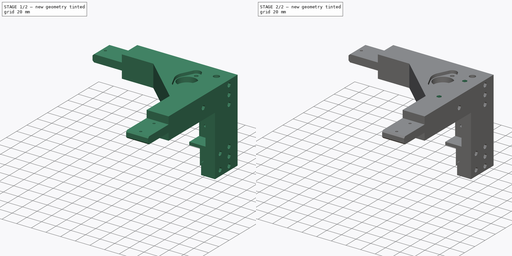
[diagram: build sequence overview — one tinted view per stage of 2, left to right]
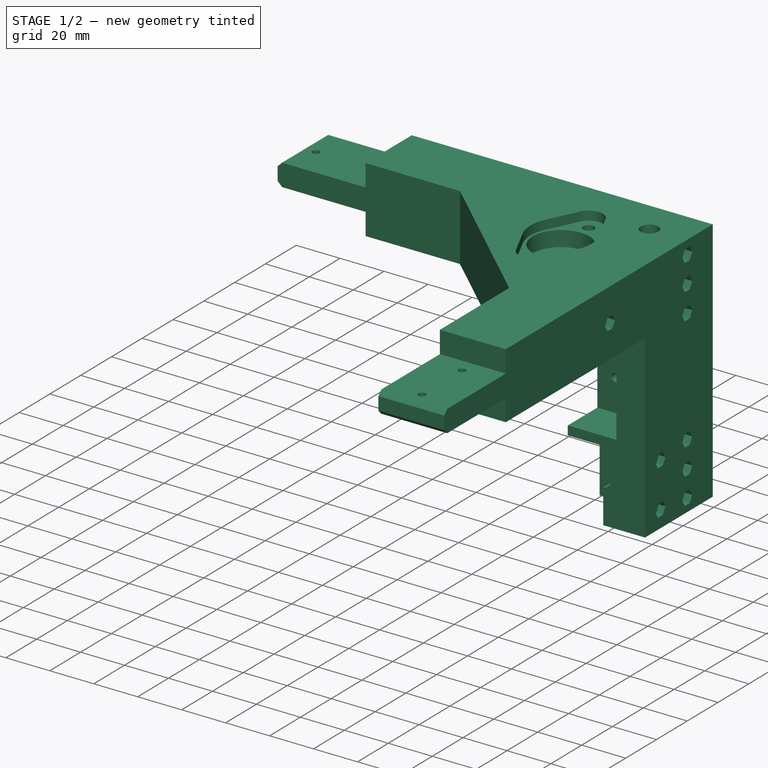
[diagram: stage 1 of 2 — iso view after this stage's code; geometry added in this stage tinted green]
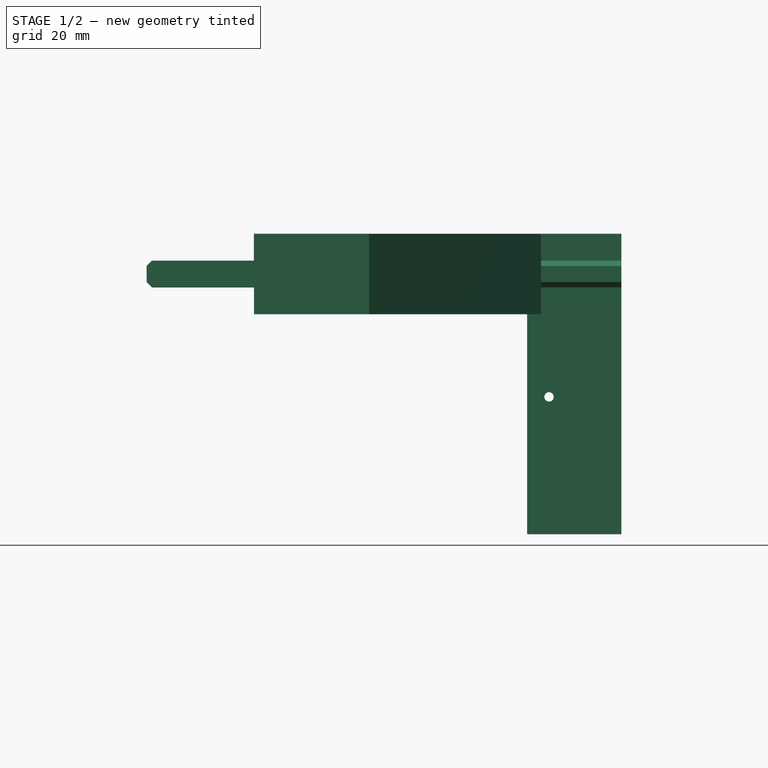
[diagram: stage 1 of 2 — front view after this stage's code; geometry added in this stage tinted green]
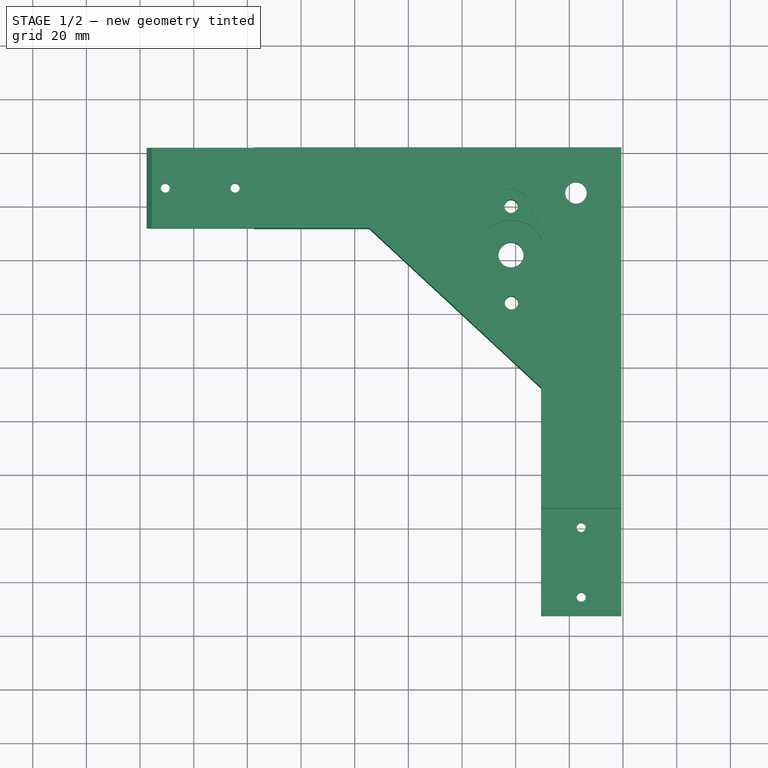
[diagram: stage 1 of 2 — top view after this stage's code; geometry added in this stage tinted green]
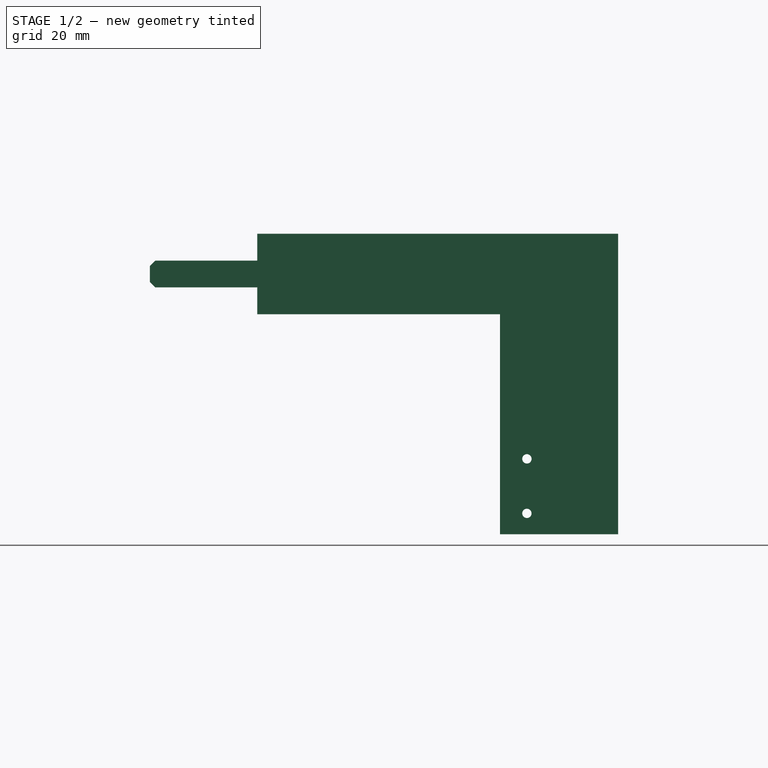
[diagram: stage 1 of 2 — right view after this stage's code; geometry added in this stage tinted green]
FCSTD DOCUMENT  (FreeCAD 2024.2R37179 (Git))
Label: TOP_Left_Front_Frame
License: All rights reserved
LicenseURL: http://en.wikipedia.org/wiki/All_rights_reserved
objects: PartDesign::Pocket×2, Part::Feature×1, PartDesign::FeatureBase×1, Sketcher::SketchObject×1, PartDesign::Body×1
note: 8 computed .brp shape members not serialized (recipe doc carries the construction recipe); baked Part::Feature solids carry a one-line shape summary decoded from their .brp

FEATURE [Part::Feature] Pocket001
  shape: bbox 177 x 174.5 x 112 mm, 155 faces (baked)
FEATURE [PartDesign::FeatureBase] BaseFeature
  BaseFeature = -> Pocket001
  Suppressed = false
FEATURE [PartDesign::Pocket] Pocket
  BaseFeature = -> BaseFeature
  Direction = (-5e-16,1,0)
  Length = 0.5
  Length2 = 5
  Profile = -> BaseFeature [Face27]
  Refine = true
  Suppressed = false
  Type = 0
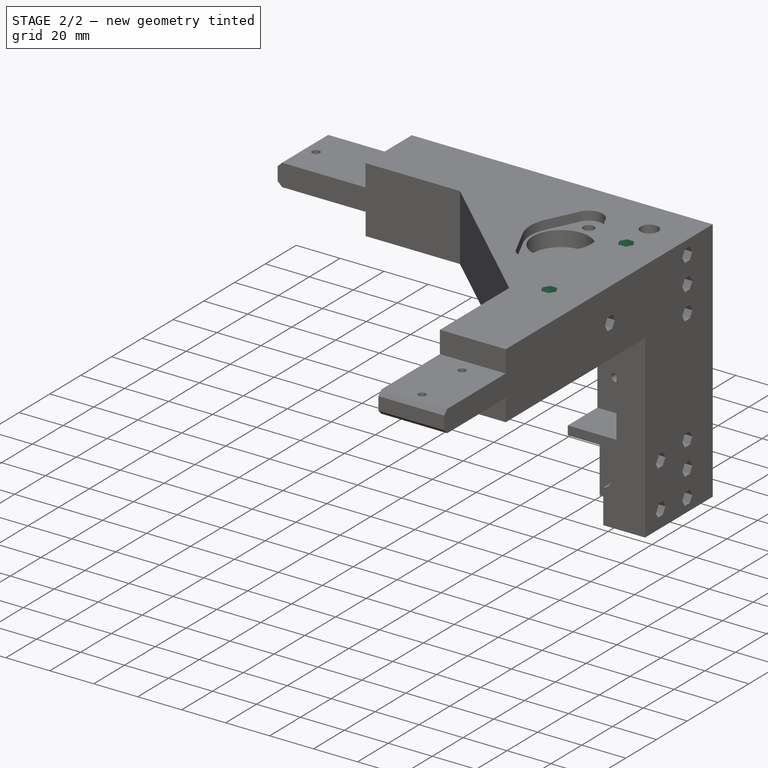
[diagram: stage 2 of 2 — iso view after this stage's code; geometry added in this stage tinted green]
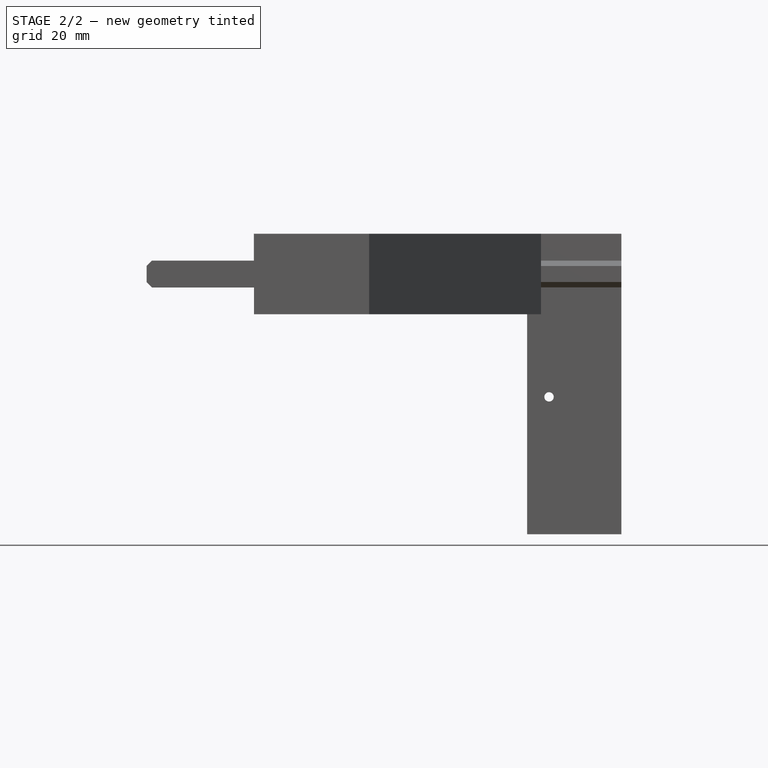
[diagram: stage 2 of 2 — front view after this stage's code; geometry added in this stage tinted green]
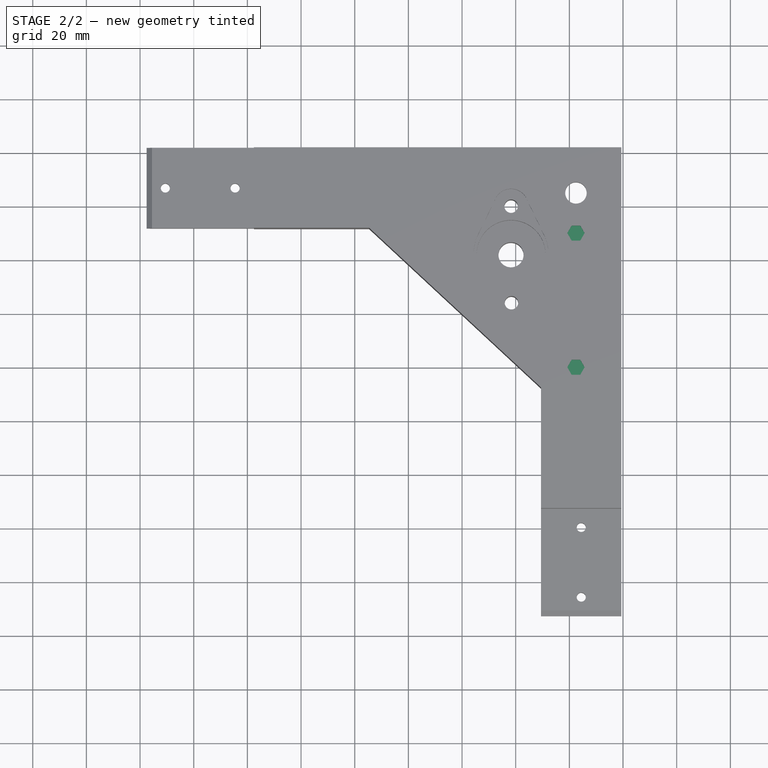
[diagram: stage 2 of 2 — top view after this stage's code; geometry added in this stage tinted green]
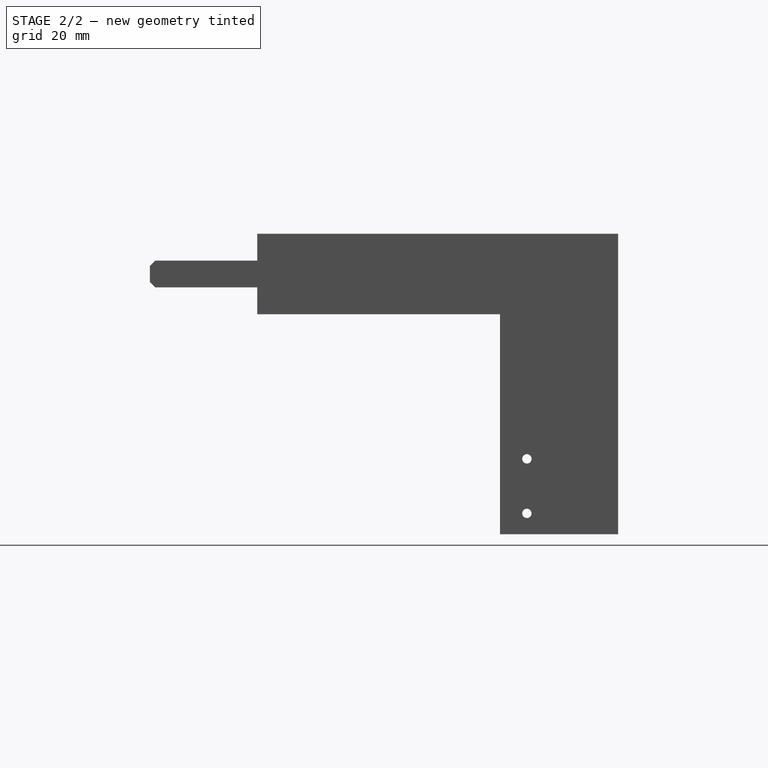
[diagram: stage 2 of 2 — right view after this stage's code; geometry added in this stage tinted green]
FEATURE [Sketcher::SketchObject] Sketch
  AttachmentSupport = -> [Pocket]
  FullyConstrained = false
  MapMode = 5
  Placement = pos=(0,0,170) rot=(0,0,1;0rad)
  sketch-geometry (14):
    g0: LineSegment StartX=-14.3228 StartY=-31.7015 StartZ=0 EndX=-15.9348 EndY=-28.9094 EndZ=0
    g1: LineSegment StartX=-15.9348 StartY=-28.9094 StartZ=0 EndX=-19.1588 EndY=-28.9094 EndZ=0
    g2: LineSegment StartX=-19.1588 StartY=-28.9094 StartZ=0 EndX=-20.7708 EndY=-31.7015 EndZ=0
    g3: LineSegment StartX=-20.7708 StartY=-31.7015 StartZ=0 EndX=-19.1588 EndY=-34.4935 EndZ=0
    g4: LineSegment StartX=-19.1588 StartY=-34.4935 StartZ=0 EndX=-15.9348 EndY=-34.4935 EndZ=0
    g5: LineSegment StartX=-15.9348 StartY=-34.4935 StartZ=0 EndX=-14.3228 EndY=-31.7015 EndZ=0
    g6: Circle CenterX=-17.5468 CenterY=-31.7015 CenterZ=0 NormalX=0 NormalY=0 NormalZ=1 AngleXU=0 Radius=3.224
    g7: LineSegment StartX=-14.3228 StartY=-81.7015 StartZ=0 EndX=-15.9348 EndY=-78.9094 EndZ=0
    g8: LineSegment StartX=-15.9348 StartY=-78.9094 StartZ=0 EndX=-19.1588 EndY=-78.9094 EndZ=0
    g9: LineSegment StartX=-19.1588 StartY=-78.9094 StartZ=0 EndX=-20.7708 EndY=-81.7015 EndZ=0
    g10: LineSegment StartX=-20.7708 StartY=-81.7015 StartZ=0 EndX=-19.1588 EndY=-84.4935 EndZ=0
    g11: LineSegment StartX=-19.1588 StartY=-84.4935 StartZ=0 EndX=-15.9348 EndY=-84.4935 EndZ=0
    g12: LineSegment StartX=-15.9348 StartY=-84.4935 StartZ=0 EndX=-14.3228 EndY=-81.7015 EndZ=0
    g13: Circle CenterX=-17.5468 CenterY=-81.7015 CenterZ=0 NormalX=0 NormalY=0 NormalZ=1 AngleXU=0 Radius=3.224
  constraints (28):
    c: Coincident(g0,g1)
    c: Coincident(g1,g2)
    c: Coincident(g2,g3)
    c: Coincident(g3,g4)
    c: Coincident(g4,g5)
    c: Coincident(g5,g0)
    c: Equal(g0, g1-g5) x5
    c: PointOnObject(g0,g6)
    c: PointOnObject(g1,g6)
    c: PointOnObject(g2,g6)
    c: PointOnObject(g3,g6)
    c: PointOnObject(g4,g6)
    c: PointOnObject(g5,g6)
    c: Radius(g6) = 3.224
    c: Coincident(g7,g8)
    c: Coincident(g8,g9)
    c: Coincident(g9,g10)
    c: Coincident(g10,g11)
    c: Coincident(g11,g12)
    c: Coincident(g12,g7)
    c: Equal(g7, g8-g12) x5
    c: PointOnObject(g7,g13)
    c: PointOnObject(g8,g13)
    c: PointOnObject(g9,g13)
    c: PointOnObject(g10,g13)
    c: PointOnObject(g11,g13)
    c: PointOnObject(g12,g13)
    c: Radius(g13) = 3.224
FEATURE [PartDesign::Pocket] Pocket002
  BaseFeature = -> Pocket
  Direction = (0,0,-1)
  Length = 5
  Length2 = 5
  Profile = -> Sketch
  ReferenceAxis = -> Sketch [N_Axis]
  Refine = true
  Suppressed = false
  Type = 0
FEATURE [PartDesign::Body] Body
  BaseFeature = -> Pocket001
  Group = -> [BaseFeature,Pocket,Sketch,Pocket002]
  Origin = -> Origin
  Tip = -> Pocket002
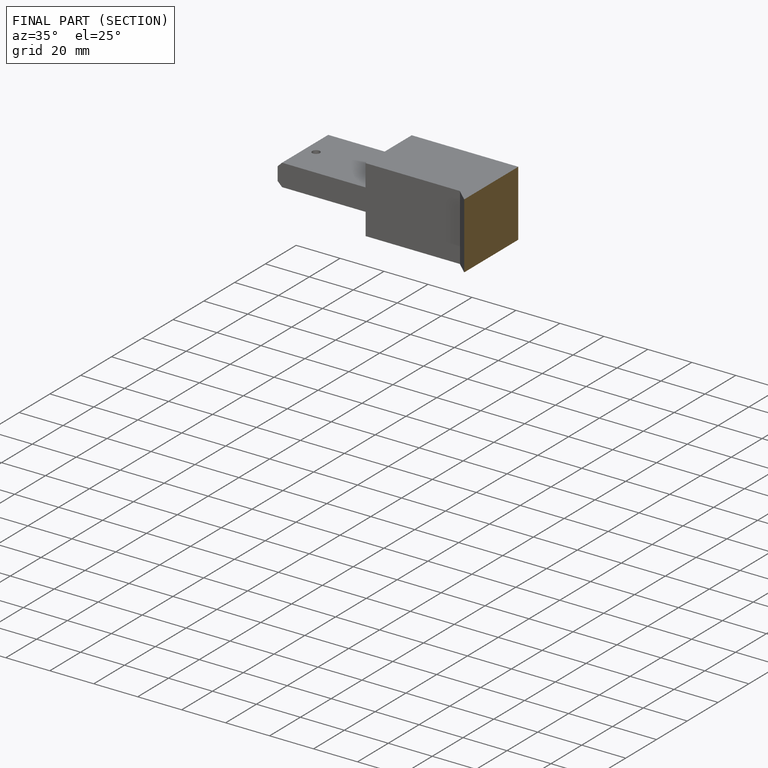
[diagram: finished part — half-section view (interior)]
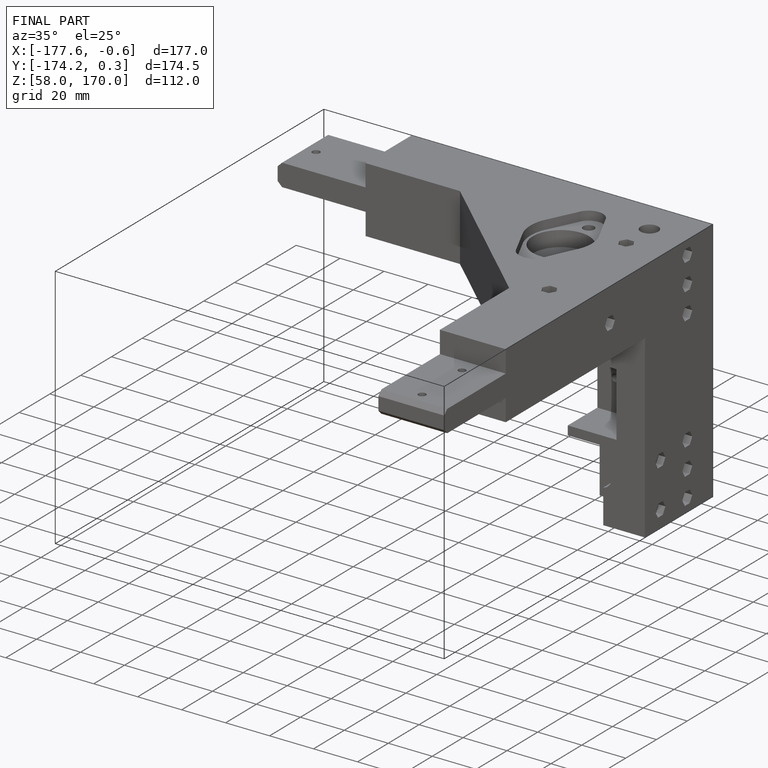
[diagram: finished part — iso view with bounding-box wireframe]
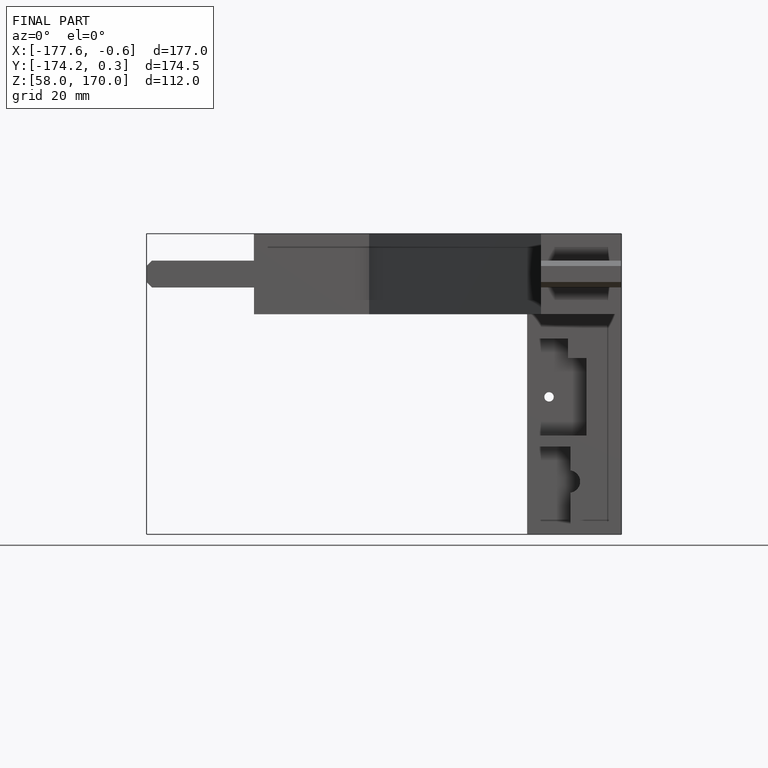
[diagram: finished part — front view with bounding-box wireframe]
